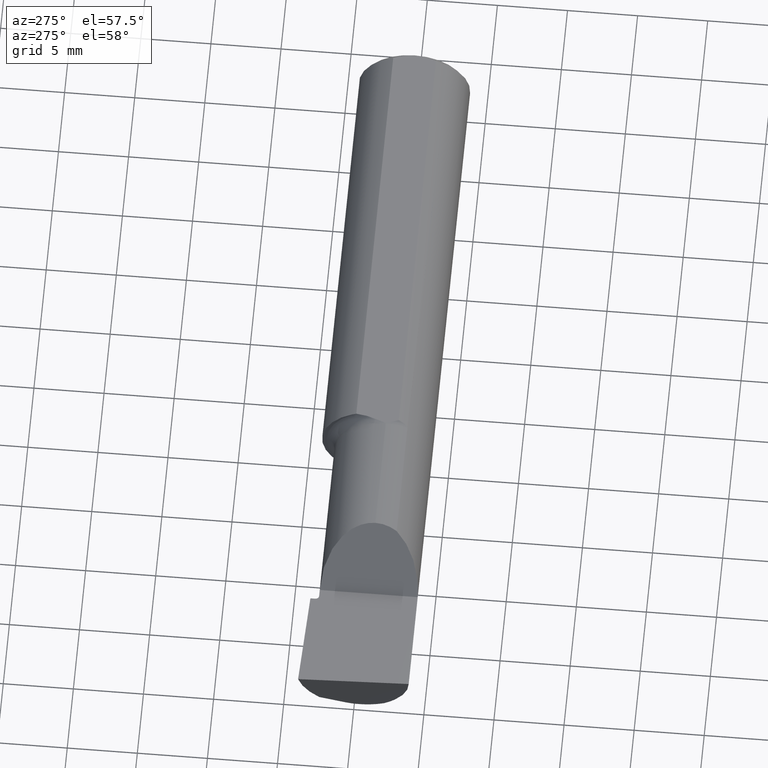
[diagram: clean part render]
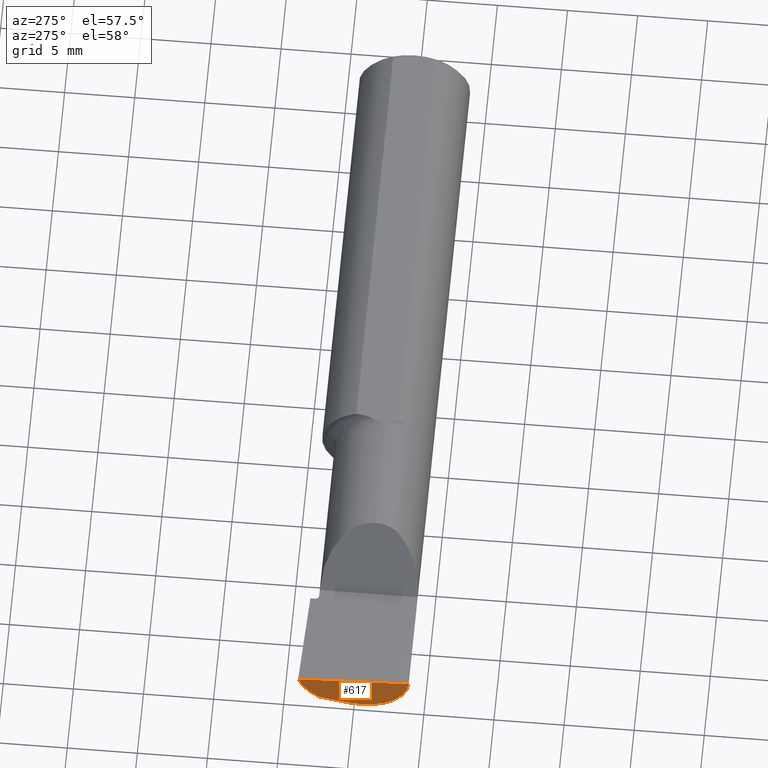
[diagram: same view with one face highlighted and labeled with its STEP entity id]
A machine part, auxiliary view. The second image highlights one B-rep face of the part: STEP entity #617.
In plain terms, the highlighted planar face has unit normal (-0.992, -0.0344, -0.1219).
Its self-contained STEP definition (entity closure, byte-faithful):
#5 = CARTESIAN_POINT ( 'NONE',  ( -1.921792024162326307, 0.1563505381603649824, -0.6373410996302685261 ) ) ;
#9 = EDGE_CURVE ( 'NONE', #199, #239, #747, .T. ) ;
#12 = CARTESIAN_POINT ( 'NONE',  ( -1.989266190342418916, -0.1561000000000000165, 3.826894855694925850E-18 ) ) ;
#18 = CARTESIAN_POINT ( 'NONE',  ( -2.000000000000000000, 0.1536194554637218546, 0.000000000000000000 ) ) ;
#26 = CARTESIAN_POINT ( 'NONE',  ( -1.979018954091639415, 0.02568722648642995585, -0.1346865397607137915 ) ) ;
#28 = VERTEX_POINT ( 'NONE', #285 ) ;
#31 = CARTESIAN_POINT ( 'NONE',  ( -1.977743596163801021, -0.1305938407426050218, -0.1009826174484538680 ) ) ;
#35 = DIRECTION ( 'NONE',  ( 0.07437990725530935210, -0.9370896517296886108, -0.3410727400684821498 ) ) ;
#38 =( BOUNDED_CURVE ( )  B_SPLINE_CURVE ( 3, ( #12, #472, #31, #329 ),
 .UNSPECIFIED., .F., .T. ) 
 B_SPLINE_CURVE_WITH_KNOTS ( ( 4, 4 ),
 ( 4.987330662103038215, 5.976951217326482713 ),
 .UNSPECIFIED. ) 
 CURVE ( )  GEOMETRIC_REPRESENTATION_ITEM ( )  RATIONAL_B_SPLINE_CURVE ( ( 1.000000000000000000, 0.9200392120919973493, 0.9200392120919973493, 1.000000000000000000 ) ) 
 REPRESENTATION_ITEM ( '' )  );
#72 = CARTESIAN_POINT ( 'NONE',  ( -1.989315288308734608, 0.1256128547571742360, -0.07906752438118828941 ) ) ;
#77 = CARTESIAN_POINT ( 'NONE',  ( -1.989266190342418916, -0.1561000000000000165, 3.826894855694925850E-18 ) ) ;
#108 = DIRECTION ( 'NONE',  ( 0.03463576215158747917, -0.9994000019912839816, 0.000000000000000000 ) ) ;
#142 = VERTEX_POINT ( 'NONE', #588 ) ;
#171 = EDGE_CURVE ( 'NONE', #176, #199, #403, .T. ) ;
#176 = VERTEX_POINT ( 'NONE', #533 ) ;
#177 = CARTESIAN_POINT ( 'NONE',  ( -1.976713598110543035, -0.008170903630063810347, -0.1439000000000000279 ) ) ;
#186 = CARTESIAN_POINT ( 'NONE',  ( -1.978902233428061486, 0.02421669862456291358, -0.1352217681310924902 ) ) ;
#191 = CARTESIAN_POINT ( 'NONE',  ( -1.976130359589496344, -0.02500000000000002220, -0.1439000000000000001 ) ) ;
#199 = VERTEX_POINT ( 'NONE', #18 ) ;
#208 = EDGE_CURVE ( 'NONE', #142, #443, #478, .T. ) ;
#227 = DIRECTION ( 'NONE',  ( -0.1219414168599299436, 0.000000000000000000, 0.9925372994775525370 ) ) ;
#231 = ORIENTED_EDGE ( 'NONE', *, *, #171, .F. ) ;
#238 = DIRECTION ( 'NONE',  ( -0.9919506264397697226, -0.03437759245050081569, -0.1218693392246628232 ) ) ;
#239 = VERTEX_POINT ( 'NONE', #77 ) ;
#251 = CARTESIAN_POINT ( 'NONE',  ( -1.975676552398976993, -0.08569999999999981799, -0.1304711462354800622 ) ) ;
#253 = EDGE_CURVE ( 'NONE', #239, #142, #38, .T. ) ;
#285 = CARTESIAN_POINT ( 'NONE',  ( -1.978902233428061486, 0.02421669862456291358, -0.1352217681310924902 ) ) ;
#294 = EDGE_CURVE ( 'NONE', #176, #28, #551, .T. ) ;
#309 = CARTESIAN_POINT ( 'NONE',  ( -1.975400702430881505, -0.04605394310600641888, -0.1439000000000000001 ) ) ;
#321 = ORIENTED_EDGE ( 'NONE', *, *, #208, .F. ) ;
#329 = CARTESIAN_POINT ( 'NONE',  ( -1.975676552398976993, -0.08569999999999981799, -0.1304711462354800622 ) ) ;
#337 = CARTESIAN_POINT ( 'NONE',  ( -1.976130359589496344, -0.02500000000000002220, -0.1439000000000000001 ) ) ;
#397 = VECTOR ( 'NONE', #35, 39.37007874015748854 ) ;
#403 =( BOUNDED_CURVE ( )  B_SPLINE_CURVE ( 3, ( #536, #72, #637, #426 ),
 .UNSPECIFIED., .F., .T. ) 
 B_SPLINE_CURVE_WITH_KNOTS ( ( 4, 4 ),
 ( 4.206370596475379031, 4.793754225472307340 ),
 .UNSPECIFIED. ) 
 CURVE ( )  GEOMETRIC_REPRESENTATION_ITEM ( )  RATIONAL_B_SPLINE_CURVE ( ( 1.000000000000000000, 0.9714544434386379601, 0.9714544434386379601, 1.000000000000000000 ) ) 
 REPRESENTATION_ITEM ( '' )  );
#426 = CARTESIAN_POINT ( 'NONE',  ( -2.000000000000000000, 0.1536194554637218546, 0.000000000000000000 ) ) ;
#436 = VECTOR ( 'NONE', #108, 39.37007874015748854 ) ;
#438 = AXIS2_PLACEMENT_3D ( 'NONE', #5, #238, #227 ) ;
#443 = VERTEX_POINT ( 'NONE', #337 ) ;
#446 =( BOUNDED_CURVE ( )  B_SPLINE_CURVE ( 3, ( #737, #177, #694, #186 ),
 .UNSPECIFIED., .F., .T. ) 
 B_SPLINE_CURVE_WITH_KNOTS ( ( 4, 4 ),
 ( 0.2749416817183487072, 0.6240075321172090517 ),
 .UNSPECIFIED. ) 
 CURVE ( )  GEOMETRIC_REPRESENTATION_ITEM ( )  RATIONAL_B_SPLINE_CURVE ( ( 1.000000000000000000, 0.9898718353414723836, 0.9898718353414723836, 1.000000000000000000 ) ) 
 REPRESENTATION_ITEM ( '' )  );
#462 = FACE_OUTER_BOUND ( 'NONE', #725, .T. ) ;
#472 = CARTESIAN_POINT ( 'NONE',  ( -1.982667168175672234, -0.1561000000000000443, -0.05371247775559846033 ) ) ;
#478 =( BOUNDED_CURVE ( )  B_SPLINE_CURVE ( 3, ( #251, #702, #309, #191 ),
 .UNSPECIFIED., .F., .T. ) 
 B_SPLINE_CURVE_WITH_KNOTS ( ( 4, 4 ),
 ( 6.122674497807377492, 6.558126988897934773 ),
 .UNSPECIFIED. ) 
 CURVE ( )  GEOMETRIC_REPRESENTATION_ITEM ( )  RATIONAL_B_SPLINE_CURVE ( ( 1.000000000000000000, 0.9842607512044745377, 0.9842607512044745377, 1.000000000000000000 ) ) 
 REPRESENTATION_ITEM ( '' )  );
#513 = ORIENTED_EDGE ( 'NONE', *, *, #580, .F. ) ;
#527 = ORIENTED_EDGE ( 'NONE', *, *, #294, .T. ) ;
#533 = CARTESIAN_POINT ( 'NONE',  ( -1.984581445594569393, 0.09576735185321395838, -0.1091794601134920550 ) ) ;
#536 = CARTESIAN_POINT ( 'NONE',  ( -1.984581445594569393, 0.09576735185321395838, -0.1091794601134920550 ) ) ;
#551 = LINE ( 'NONE', #26, #397 ) ;
#570 = CARTESIAN_POINT ( 'NONE',  ( -1.999553225608605045, 0.1407279727905353106, 3.826894855694925850E-18 ) ) ;
#580 = EDGE_CURVE ( 'NONE', #443, #28, #446, .T. ) ;
#588 = CARTESIAN_POINT ( 'NONE',  ( -1.975676552398976993, -0.08569999999999981799, -0.1304711462354800622 ) ) ;
#617 = ADVANCED_FACE ( 'NONE', ( #462 ), #744, .T. ) ;
#622 = ORIENTED_EDGE ( 'NONE', *, *, #253, .F. ) ;
#637 = CARTESIAN_POINT ( 'NONE',  ( -1.994605827839287970, 0.1454635380981003367, -0.04160498188424533589 ) ) ;
#694 = CARTESIAN_POINT ( 'NONE',  ( -1.977647009804057054, 0.008402520951238974870, -0.1409776580835794546 ) ) ;
#702 = CARTESIAN_POINT ( 'NONE',  ( -1.975247014433751058, -0.06661082633900441974, -0.1393521354400289458 ) ) ;
#725 = EDGE_LOOP ( 'NONE', ( #745, #231, #527, #513, #321, #622 ) ) ;
#737 = CARTESIAN_POINT ( 'NONE',  ( -1.976130359589496344, -0.02500000000000002220, -0.1439000000000000001 ) ) ;
#744 = PLANE ( 'NONE',  #438 ) ;
#745 = ORIENTED_EDGE ( 'NONE', *, *, #9, .F. ) ;
#747 = LINE ( 'NONE', #570, #436 ) ;